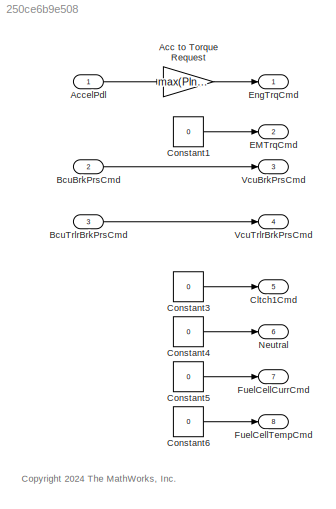
MODEL slx_250ce6b9e508
KIND model
CONFIG AbsTol = auto
CONFIG EnableMultiTasking = off
CONFIG FixedStep = auto
CONFIG MaxStep = auto
CONFIG MinStep = auto
CONFIG RelTol = 1e-3
CONFIG SampleTimeConstraint = Unconstrained
CONFIG SolverName = VariableStepAuto
CONFIG StartTime = 0.0
CONFIG StopTime = 10.0
BLOCK [Gain] Acc to Torque Request
  Gain = max(PlntEngTqMax)
BLOCK [Inport] AccelPdl
BLOCK [Inport] BcuBrkPrsCmd
  Port = 2
  SampleTime = 0.01
BLOCK [Inport] BcuTrlrBrkPrsCmd
  Port = 3
  SampleTime = 0.01
BLOCK [Outport] Cltch1Cmd
  Port = 5
  PortDimensions = 1
  SampleTime = [0.01,0]
  SamplingMode = Sample based
  SignalType = real
  VectorParamsAs1DForOutWhenUnconnected = off
BLOCK [Constant] Constant1
  SampleTime = -1
  Value = 0
BLOCK [Constant] Constant3
  SampleTime = -1
  Value = 0
BLOCK [Constant] Constant4
  SampleTime = -1
  Value = 0
BLOCK [Constant] Constant5
  SampleTime = -1
  Value = 0
BLOCK [Constant] Constant6
  SampleTime = -1
  Value = 0
BLOCK [Outport] EMTrqCmd
  Port = 2
  VectorParamsAs1DForOutWhenUnconnected = off
BLOCK [Outport] EngTrqCmd
  OutDataTypeStr = double
  PortDimensions = 1
  SampleTime = [0.01,0]
  SamplingMode = Sample based
  SignalType = real
  VectorParamsAs1DForOutWhenUnconnected = off
BLOCK [Outport] FuelCellCurrCmd
  Port = 7
  SampleTime = .01
BLOCK [Outport] FuelCellTempCmd
  Port = 8
BLOCK [Outport] Neutral
  Port = 6
  PortDimensions = 1
  SampleTime = [0.01,0]
  SamplingMode = Sample based
  SignalType = real
  VectorParamsAs1DForOutWhenUnconnected = off
BLOCK [Outport] VcuBrkPrsCmd
  Port = 3
  PortDimensions = 4
  VectorParamsAs1DForOutWhenUnconnected = off
BLOCK [Outport] VcuTrlrBrkPrsCmd
  Port = 4
  PortDimensions = 6
  VectorParamsAs1DForOutWhenUnconnected = off
ANNOTATION (root): <copyright redacted>
LINE Acc to Torque Request:1 -> EngTrqCmd:1
LINE AccelPdl:1 -> Acc to Torque Request:1
LINE BcuBrkPrsCmd:1 -> VcuBrkPrsCmd:1
LINE BcuTrlrBrkPrsCmd:1 -> VcuTrlrBrkPrsCmd:1
LINE Constant1:1 -> EMTrqCmd:1
LINE Constant3:1 -> Cltch1Cmd:1
LINE Constant4:1 -> Neutral:1
LINE Constant5:1 -> FuelCellCurrCmd:1
LINE Constant6:1 -> FuelCellTempCmd:1
